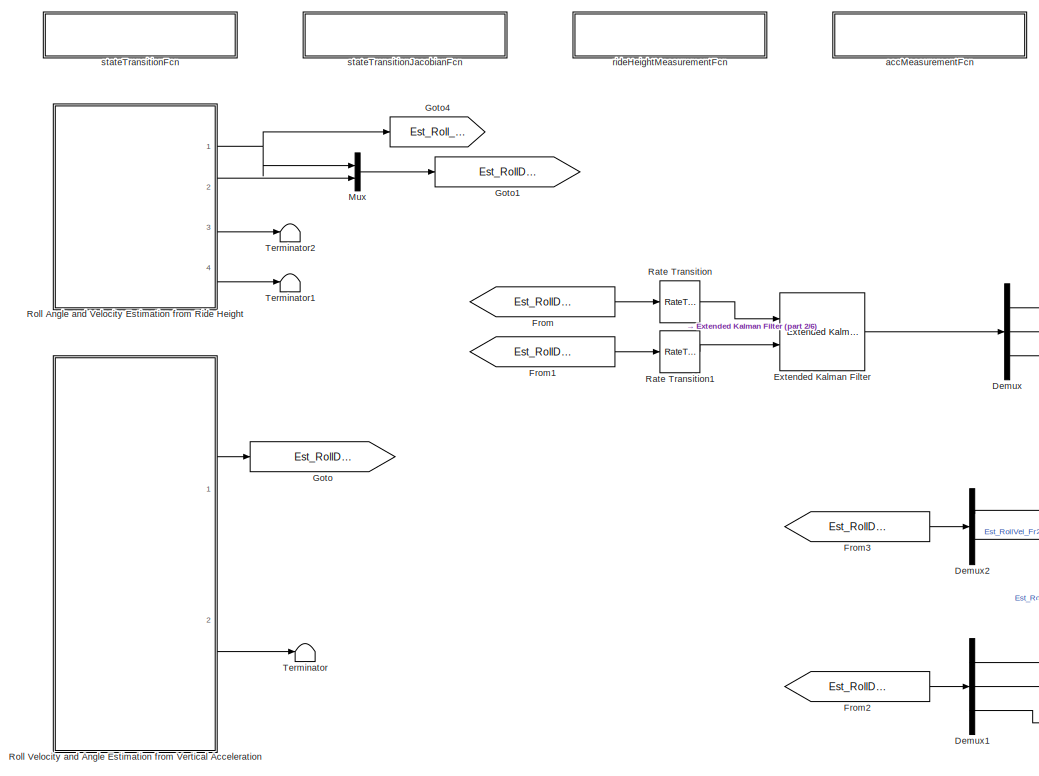
[diagram: root canvas - part 1/6, top left region]
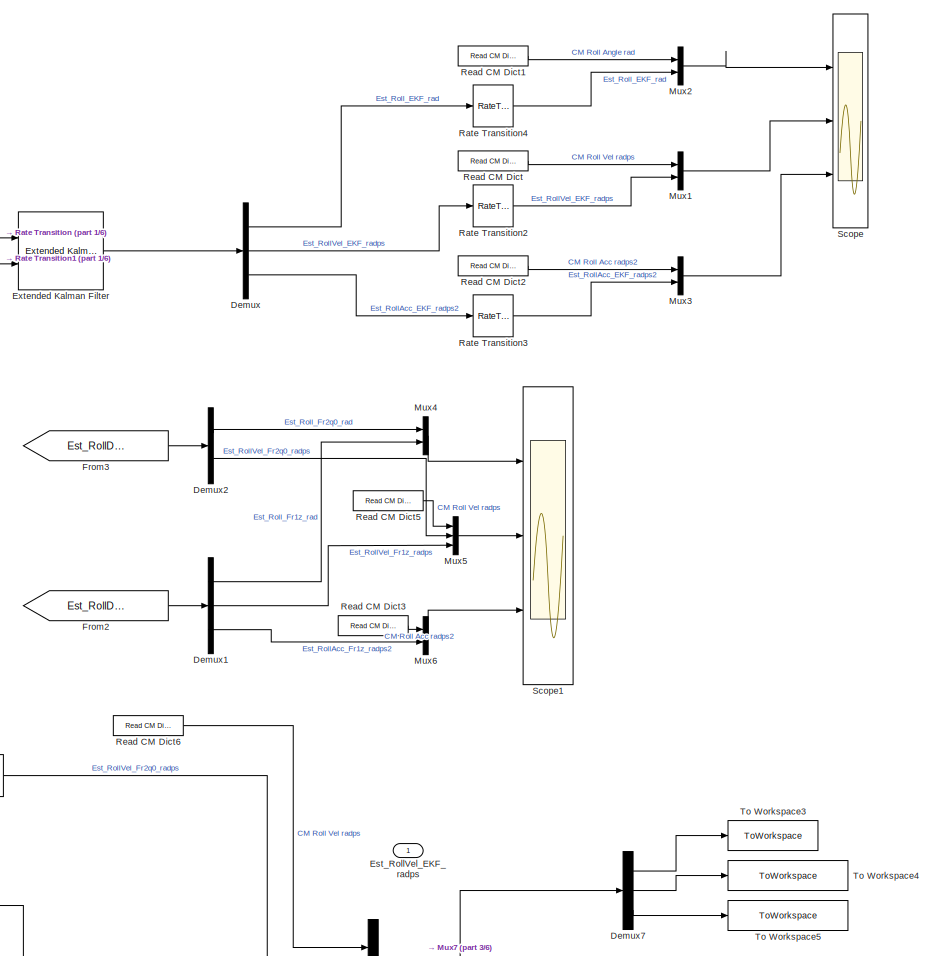
[diagram: root canvas - part 2/6, top center region]
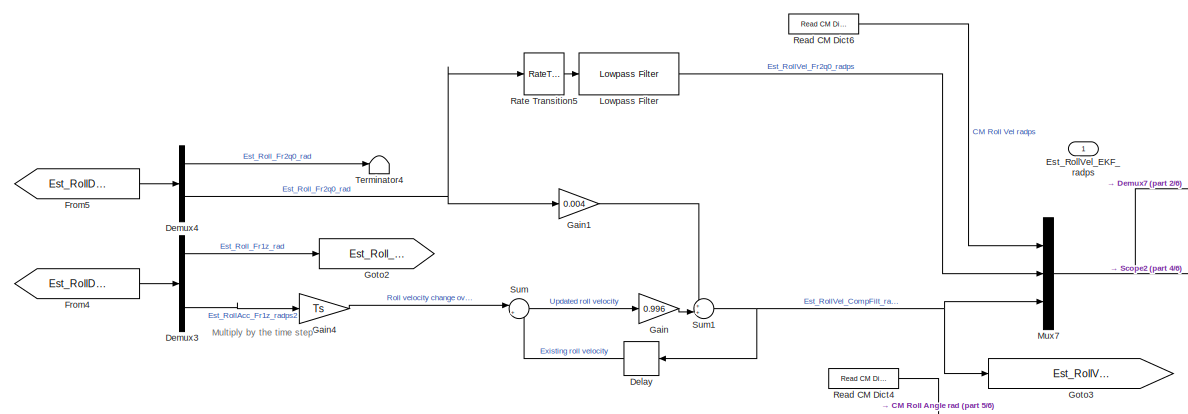
[diagram: root canvas - part 3/6, central region]
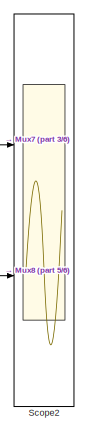
[diagram: root canvas - part 4/6, middle right region]
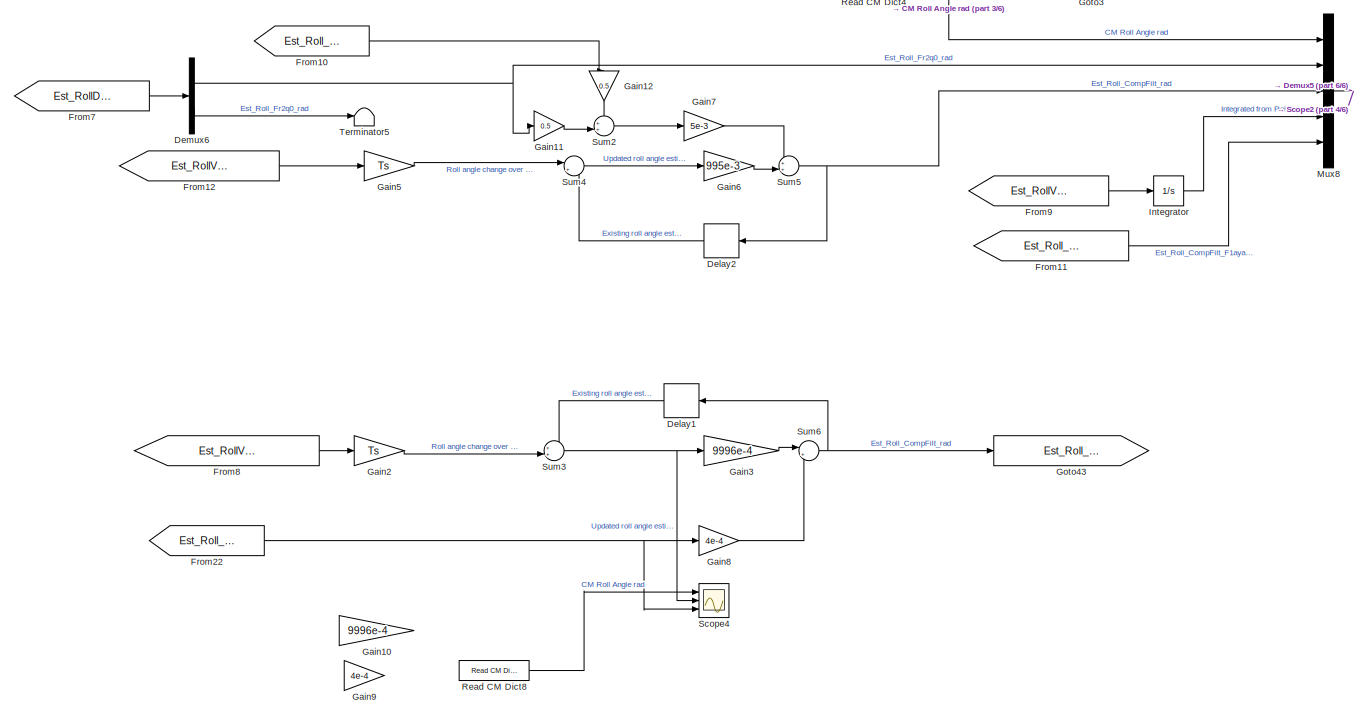
[diagram: root canvas - part 5/6, bottom center region]
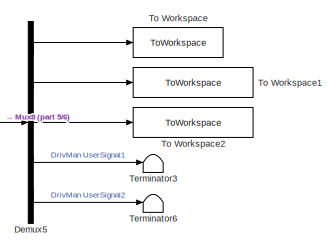
[diagram: root canvas - part 6/6, bottom right region]
MODEL slx_827eccd892d7
KIND model
CONFIG AbsTol = auto
CONFIG EnableMultiTasking = on
CONFIG FixedStep = auto
CONFIG MaxStep = auto
CONFIG MinStep = auto
CONFIG RelTol = 1e-3
CONFIG SampleTimeConstraint = Unconstrained
CONFIG SolverName = FixedStepAuto
CONFIG StartTime = 0.0
CONFIG StopTime = 10.0
BLOCK [Delay] Delay
  DelayLength = 1
  InputPortMap = u0
  NameLocation = top
  Ports = [1, 1]
BLOCK [Delay] Delay1
  DelayLength = 1
  InputPortMap = u0
  NameLocation = top
  Ports = [1, 1]
BLOCK [Delay] Delay2
  DelayLength = 1
  InputPortMap = u0
  NameLocation = top
  Ports = [1, 1]
BLOCK [Demux] Demux
  DisplayOption = none
  Outputs = 3
  Ports = [1, 3]
BLOCK [Demux] Demux1
  DisplayOption = none
  Outputs = 3
  Ports = [1, 3]
BLOCK [Demux] Demux2
  DisplayOption = none
  Outputs = 2
  Ports = [1, 2]
BLOCK [Demux] Demux3
  DisplayOption = none
  Outputs = 3
  Ports = [1, 3]
BLOCK [Demux] Demux4
  DisplayOption = none
  Outputs = 2
  Ports = [1, 2]
BLOCK [Demux] Demux5
  DisplayOption = none
  Outputs = 5
  Ports = [1, 5]
BLOCK [Demux] Demux6
  DisplayOption = none
  Outputs = 2
  Ports = [1, 2]
BLOCK [Demux] Demux7
  Outputs = 3
  Ports = [1, 3]
BLOCK [Outport] Est_RollVel_EKF_radps
BLOCK [Reference] Extended Kalman Filter  REF=sharedTrackingLibrary/Extended Kalman Filter
  Commented = on
  Ports = [2, 1]
  SourceBlock = sharedTrackingLibrary/Extended Kalman Filter
  SourceProductBaseCode = CT,DR,TF,ID,LP,NV,AR,RO,RR,UV,VE
  SourceType = Extended Kalman Filter
BLOCK [From] From
  Commented = on
  GotoTag = Est_RollDynamics_Fr2q0
BLOCK [From] From1
  Commented = on
  GotoTag = Est_RollDynamics_Fr1z
BLOCK [From] From10
  GotoTag = Est_Roll_Fr1ayaz_rad
BLOCK [From] From11
  GotoTag = Est_Roll_CompFilt_rad
BLOCK [From] From12
  GotoTag = Est_RollVel_CompFilt_radps
BLOCK [From] From2
  GotoTag = Est_RollDynamics_Fr1z
BLOCK [From] From22
  GotoTag = Est_Roll_Fr1ayaz_rad
BLOCK [From] From3
  GotoTag = Est_RollDynamics_Fr2q0
BLOCK [From] From4
  GotoTag = Est_RollDynamics_Fr1z
BLOCK [From] From5
  GotoTag = Est_RollDynamics_Fr2q0
BLOCK [From] From7
  GotoTag = Est_RollDynamics_Fr2q0
BLOCK [From] From8
  GotoTag = Est_RollVel_CompFilt_radps
BLOCK [From] From9
  GotoTag = Est_RollVel_CompFilt_radps
BLOCK [Gain] Gain
  Gain = 0.996
BLOCK [Gain] Gain1
  Gain = 0.004
BLOCK [Gain] Gain10
  Gain = 9996e-4
BLOCK [Gain] Gain11
  Gain = 0.5
BLOCK [Gain] Gain12
  Gain = 0.5
  NameLocation = left
BLOCK [Gain] Gain2
  Gain = Ts
BLOCK [Gain] Gain3
  Gain = 9996e-4
BLOCK [Gain] Gain4
  Gain = Ts
BLOCK [Gain] Gain5
  Gain = Ts
BLOCK [Gain] Gain6
  Gain = 995e-3
BLOCK [Gain] Gain7
  Gain = 5e-3
BLOCK [Gain] Gain8
  Gain = 4e-4
BLOCK [Gain] Gain9
  Gain = 4e-4
BLOCK [Goto] Goto
  GotoTag = Est_RollDynamics_Fr1z
BLOCK [Goto] Goto1
  GotoTag = Est_RollDynamics_Fr2q0
BLOCK [Goto] Goto2
  GotoTag = Est_Roll_Fr1ayaz_rad
BLOCK [Goto] Goto3
  GotoTag = Est_RollVel_CompFilt_radps
BLOCK [Goto] Goto4
  GotoTag = Est_Roll_Fr2q0_rad
BLOCK [Goto] Goto43
  GotoTag = Est_Roll_CompFilt_rad
BLOCK [Integrator] Integrator
  Ports = [1, 1]
BLOCK [Reference] Lowpass Filter  REF=dspfdesign/Lowpass Filter
  Ports = [1, 1]
  SourceBlock = dspfdesign/Lowpass Filter
  SourceProductBaseCode = DS
  SourceType = dsp.LowpassFilter
BLOCK [Mux] Mux
  DisplayOption = bar
  Inputs = 2
  Ports = [2, 1]
BLOCK [Mux] Mux1
  DisplayOption = bar
  Inputs = 2
  Ports = [2, 1]
BLOCK [Mux] Mux2
  DisplayOption = bar
  Inputs = 2
  Ports = [2, 1]
BLOCK [Mux] Mux3
  DisplayOption = bar
  Inputs = 2
  Ports = [2, 1]
BLOCK [Mux] Mux4
  DisplayOption = bar
  Inputs = 2
  Ports = [2, 1]
BLOCK [Mux] Mux5
  DisplayOption = bar
  Inputs = 3
  Ports = [3, 1]
BLOCK [Mux] Mux6
  DisplayOption = bar
  Inputs = 2
  Ports = [2, 1]
BLOCK [Mux] Mux7
  DisplayOption = bar
  Inputs = 3
  Ports = [3, 1]
BLOCK [Mux] Mux8
  DisplayOption = bar
  Inputs = 5
  Ports = [5, 1]
BLOCK [RateTransition] Rate Transition
  Commented = on
BLOCK [RateTransition] Rate Transition1
  Commented = on
BLOCK [RateTransition] Rate Transition2
BLOCK [RateTransition] Rate Transition3
BLOCK [RateTransition] Rate Transition4
BLOCK [RateTransition] Rate Transition5
BLOCK [Reference] Read CM Dict  REF=CarMaker4SL/Read CM Dict
  Ports = [0, 1]
  SourceBlock = CarMaker4SL/Read CM Dict
  SourceProductName = CarMaker4SL
  SourceType = Read CarMaker Dictionary Variable(s)
BLOCK [Reference] Read CM Dict1  REF=CarMaker4SL/Read CM Dict
  Ports = [0, 1]
  SourceBlock = CarMaker4SL/Read CM Dict
  SourceProductName = CarMaker4SL
  SourceType = Read CarMaker Dictionary Variable(s)
BLOCK [Reference] Read CM Dict2  REF=CarMaker4SL/Read CM Dict
  Ports = [0, 1]
  SourceBlock = CarMaker4SL/Read CM Dict
  SourceProductName = CarMaker4SL
  SourceType = Read CarMaker Dictionary Variable(s)
BLOCK [Reference] Read CM Dict3  REF=CarMaker4SL/Read CM Dict
  Ports = [0, 1]
  SourceBlock = CarMaker4SL/Read CM Dict
  SourceProductName = CarMaker4SL
  SourceType = Read CarMaker Dictionary Variable(s)
BLOCK [Reference] Read CM Dict4  REF=CarMaker4SL/Read CM Dict
  Ports = [0, 1]
  SourceBlock = CarMaker4SL/Read CM Dict
  SourceProductName = CarMaker4SL
  SourceType = Read CarMaker Dictionary Variable(s)
BLOCK [Reference] Read CM Dict5  REF=CarMaker4SL/Read CM Dict
  Ports = [0, 1]
  SourceBlock = CarMaker4SL/Read CM Dict
  SourceProductName = CarMaker4SL
  SourceType = Read CarMaker Dictionary Variable(s)
BLOCK [Reference] Read CM Dict6  REF=CarMaker4SL/Read CM Dict
  Ports = [0, 1]
  SourceBlock = CarMaker4SL/Read CM Dict
  SourceProductName = CarMaker4SL
  SourceType = Read CarMaker Dictionary Variable(s)
BLOCK [Reference] Read CM Dict8  REF=CarMaker4SL/Read CM Dict
  Ports = [0, 1]
  SourceBlock = CarMaker4SL/Read CM Dict
  SourceProductName = CarMaker4SL
  SourceType = Read CarMaker Dictionary Variable(s)
BLOCK [ModelReference] Roll Angle and Velocity Estimation from Ride Height
  ModelNameDialog = s0501_rollest_rideheight.slx
  ModelReferenceVersion = 1.15
  Ports = [0, 4]
BLOCK [ModelReference] Roll Velocity and Angle Estimation from Vertical Acceleration
  ModelNameDialog = s0502_rollest_vertacc.slx
  ModelReferenceVersion = 1.16
  Ports = [0, 2]
BLOCK [Scope] Scope
  Floating = off
  NumInputPorts = 3
  Ports = [3]
  ScopeSpecificationString = Simulink.scopes.TimeScopeBlockCfg('CurrentConfiguration', extmgr.ConfigurationSet(extmgr.Configuration('Core','General UI',true),extmgr.Configuration('Core','Source UI',true),extmgr.Configuration('Sources','WiredSimulink',true),extmgr.Configuration('Visuals','Time Domain',true,'SerializedDisplays',{struct('MinYLimReal','-142903566297649778511224766464.00000','MaxYLimReal','464012648879239507445442...<+3032ch>
BLOCK [Scope] Scope1
  Floating = off
  NumInputPorts = 3
  Ports = [3]
  ScopeSpecificationString = Simulink.scopes.TimeScopeBlockCfg('CurrentConfiguration', extmgr.ConfigurationSet(extmgr.Configuration('Core','General UI',true),extmgr.Configuration('Core','Source UI',true),extmgr.Configuration('Sources','WiredSimulink',true,'DataLoggingVariableName','ScopeData1'),extmgr.Configuration('Visuals','Time Domain',true,'SerializedDisplays',{struct('MinYLimReal','-0.11492','MaxYLimReal','0.41574','YLab...<+2868ch>
BLOCK [Scope] Scope2
  Floating = off
  NumInputPorts = 2
  Ports = [2]
  ScopeSpecificationString = Simulink.scopes.TimeScopeBlockCfg('CurrentConfiguration', extmgr.ConfigurationSet(extmgr.Configuration('Core','General UI',true),extmgr.Configuration('Core','Source UI',true),extmgr.Configuration('Sources','WiredSimulink',true,'DataLoggingVariableName','ScopeData2'),extmgr.Configuration('Visuals','Time Domain',true,'SerializedDisplays',{struct('MinYLimReal','-0.66443','MaxYLimReal','0.66936','YLab...<+2537ch>
BLOCK [Scope] Scope4
  Floating = off
  NumInputPorts = 3
  Ports = [3]
  ScopeSpecificationString = Simulink.scopes.TimeScopeBlockCfg('CurrentConfiguration', extmgr.ConfigurationSet(extmgr.Configuration('Core','General UI',true),extmgr.Configuration('Core','Source UI',true),extmgr.Configuration('Sources','WiredSimulink',true,'DataLoggingVariableName','ScopeData2'),extmgr.Configuration('Visuals','Time Domain',true,'SerializedDisplays',{struct('MinYLimReal','-0.00941','MaxYLimReal','0.08306','YLab...<+1506ch>
BLOCK [Sum] Sum
  Inputs = |++
  Ports = [2, 1]
BLOCK [Sum] Sum1
  Inputs = ++|
  Ports = [2, 1]
BLOCK [Sum] Sum2
  Inputs = ++|
  Ports = [2, 1]
BLOCK [Sum] Sum3
  Inputs = ++|
  Ports = [2, 1]
BLOCK [Sum] Sum4
  Inputs = |++
  Ports = [2, 1]
BLOCK [Sum] Sum5
  Inputs = ++|
  Ports = [2, 1]
BLOCK [Sum] Sum6
  Inputs = |++
  Ports = [2, 1]
BLOCK [Terminator] Terminator
BLOCK [Terminator] Terminator1
BLOCK [Terminator] Terminator2
BLOCK [Terminator] Terminator3
BLOCK [Terminator] Terminator4
BLOCK [Terminator] Terminator5
BLOCK [Terminator] Terminator6
BLOCK [ToWorkspace] To Workspace
  FixptAsFi = on
  MaxDataPoints = inf
  Ports = [1]
  SampleTime = -1
  VariableName = Car_Roll_rad
BLOCK [ToWorkspace] To Workspace1
  FixptAsFi = on
  MaxDataPoints = inf
  Ports = [1]
  SampleTime = -1
  VariableName = Est_Roll_Fr2q0_rad
BLOCK [ToWorkspace] To Workspace2
  FixptAsFi = on
  MaxDataPoints = inf
  Ports = [1]
  SampleTime = -1
  VariableName = Est_Roll_CompFilt_rad
BLOCK [ToWorkspace] To Workspace3
  FixptAsFi = on
  MaxDataPoints = inf
  Ports = [1]
  SampleTime = -1
  VariableName = Car_RollVel_radps
BLOCK [ToWorkspace] To Workspace4
  FixptAsFi = on
  MaxDataPoints = inf
  Ports = [1]
  SampleTime = -1
  VariableName = Est_RollVel_Fr2q0_radps
BLOCK [ToWorkspace] To Workspace5
  FixptAsFi = on
  MaxDataPoints = inf
  Ports = [1]
  SampleTime = -1
  VariableName = Est_RollVel_CompFilt_radps
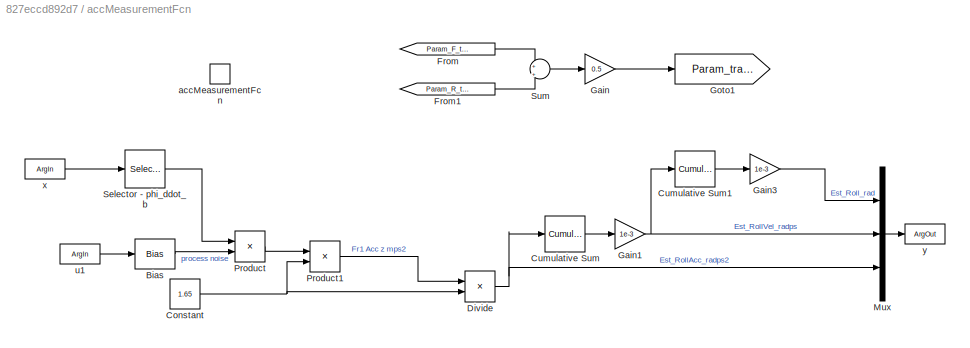
BLOCK [SubSystem] accMeasurementFcn
  Ports = [0, 0, 0, 1]
  RequestExecContextInheritance = off
  TreatAsAtomicUnit = on
BLOCK [Bias] accMeasurementFcn/Bias
  Bias = 1
  SaturateOnIntegerOverflow = off
BLOCK [Constant] accMeasurementFcn/Constant
  Value = 1.65
BLOCK [Reference] accMeasurementFcn/Cumulative Sum  REF=dspmathops/Cumulative
Sum
  Ports = [1, 1]
  SourceBlock = dspmathops/Cumulative\nSum
  SourceProductBaseCode = DS
  SourceType = Cumulative Sum
  UserDataPersistent = on
BLOCK [Reference] accMeasurementFcn/Cumulative Sum1  REF=dspmathops/Cumulative
Sum
  Ports = [1, 1]
  SourceBlock = dspmathops/Cumulative\nSum
  SourceProductBaseCode = DS
  SourceType = Cumulative Sum
  UserDataPersistent = on
BLOCK [Product] accMeasurementFcn/Divide
  Inputs = */
  Ports = [2, 1]
BLOCK [From] accMeasurementFcn/From
  Commented = on
  GotoTag = Param_F_track
BLOCK [From] accMeasurementFcn/From1
  Commented = on
  GotoTag = Param_R_track
BLOCK [Gain] accMeasurementFcn/Gain
  Commented = on
  Gain = 0.5
BLOCK [Gain] accMeasurementFcn/Gain1
  Gain = 1e-3
BLOCK [Gain] accMeasurementFcn/Gain3
  Gain = 1e-3
BLOCK [Goto] accMeasurementFcn/Goto1
  Commented = on
  GotoTag = Param_track
BLOCK [Mux] accMeasurementFcn/Mux
  DisplayOption = bar
  Inputs = 3
  Ports = [3, 1]
BLOCK [Product] accMeasurementFcn/Product
  Ports = [2, 1]
BLOCK [Product] accMeasurementFcn/Product1
  Ports = [2, 1]
BLOCK [Selector] accMeasurementFcn/Selector - phi_ddot_b
  IndexOptions = Index vector (dialog)
  Indices = [3]
  InputPortWidth = 3
  OutputSizes = 1
  Ports = [1, 1]
BLOCK [Sum] accMeasurementFcn/Sum
  Commented = on
  Inputs = +|+
  Ports = [2, 1]
BLOCK [TriggerPort] accMeasurementFcn/accMeasurementFcn
  FunctionName = accMeasurementFcn
  FunctionVisibility = scoped
  IsSimulinkFunction = on
  Ports = []
  StatesWhenEnabling = held
  TriggerType = function-call
  VariantControl = (inherit)
BLOCK [ArgIn] accMeasurementFcn/u1
  ArgumentName = v
  DisableCoverage = on
  Port = 2
BLOCK [ArgIn] accMeasurementFcn/x
  ArgumentName = x
  DisableCoverage = on
  PortDimensions = 3
BLOCK [ArgOut] accMeasurementFcn/y
  ArgumentName = y
  DisableCoverage = on
  PortDimensions = 3
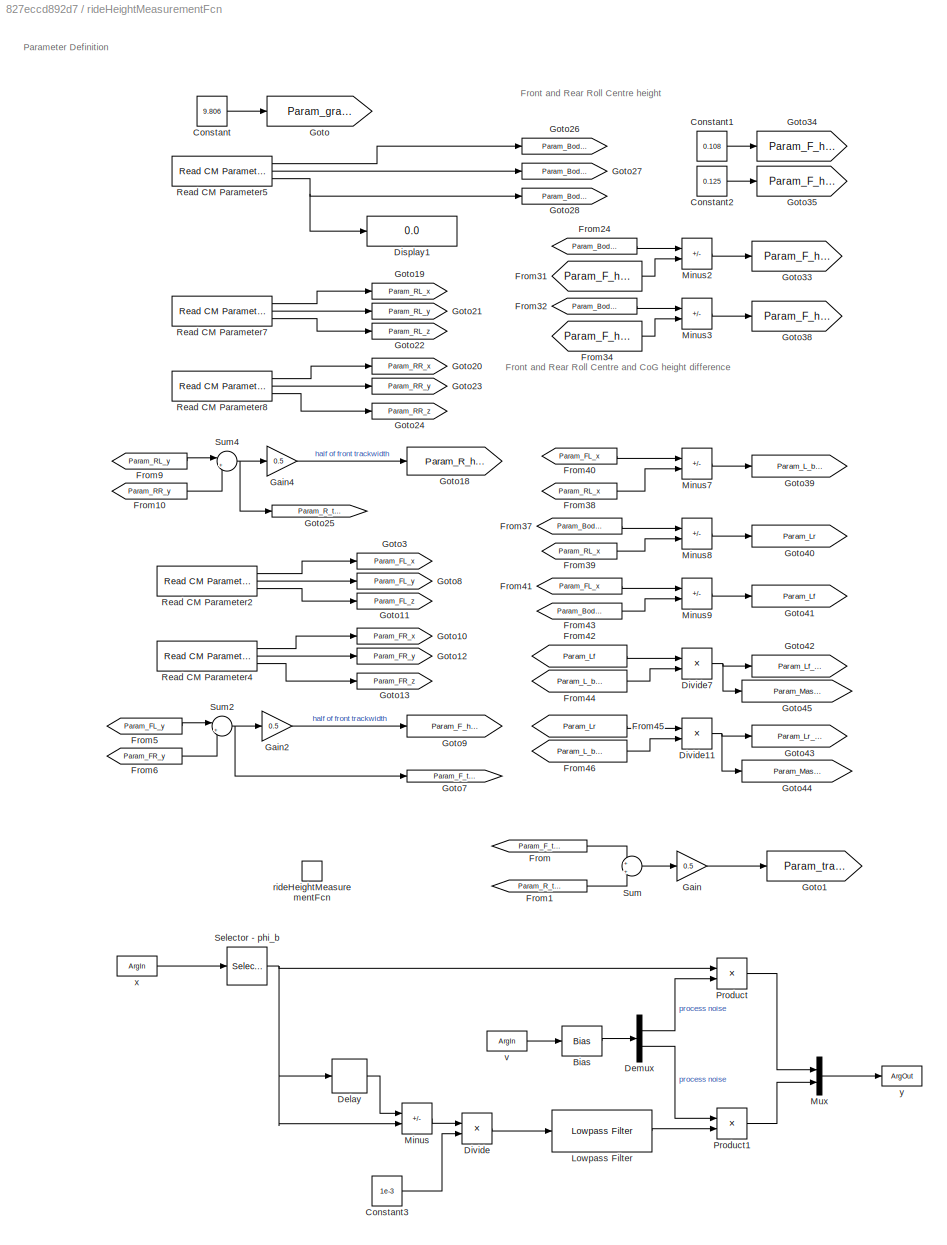
BLOCK [SubSystem] rideHeightMeasurementFcn
  Ports = [0, 0, 0, 1]
  RequestExecContextInheritance = off
  TreatAsAtomicUnit = on
BLOCK [Bias] rideHeightMeasurementFcn/Bias
  Bias = 1
  SaturateOnIntegerOverflow = off
BLOCK [Constant] rideHeightMeasurementFcn/Constant
  Commented = on
  Value = 9.806
BLOCK [Constant] rideHeightMeasurementFcn/Constant1
  Commented = on
  Value = 0.108
BLOCK [Constant] rideHeightMeasurementFcn/Constant2
  Commented = on
  Value = 0.125
BLOCK [Constant] rideHeightMeasurementFcn/Constant3
  Value = 1e-3
BLOCK [Delay] rideHeightMeasurementFcn/Delay
  DelayLength = 1
  InputPortMap = u0
  Ports = [1, 1]
BLOCK [Demux] rideHeightMeasurementFcn/Demux
  DisplayOption = none
  Outputs = 2
  Ports = [1, 2]
BLOCK [Display] rideHeightMeasurementFcn/Display1
  Commented = on
  Decimation = 1
  Ports = [1]
BLOCK [Product] rideHeightMeasurementFcn/Divide
  Inputs = */
  Ports = [2, 1]
BLOCK [Product] rideHeightMeasurementFcn/Divide11
  Commented = on
  Inputs = */
  Ports = [2, 1]
BLOCK [Product] rideHeightMeasurementFcn/Divide7
  Commented = on
  Inputs = */
  Ports = [2, 1]
BLOCK [From] rideHeightMeasurementFcn/From
  Commented = on
  GotoTag = Param_F_track
BLOCK [From] rideHeightMeasurementFcn/From1
  Commented = on
  GotoTag = Param_R_track
BLOCK [From] rideHeightMeasurementFcn/From10
  Commented = on
  GotoTag = Param_RR_y
BLOCK [From] rideHeightMeasurementFcn/From24
  Commented = on
  GotoTag = Param_Body_z
BLOCK [From] rideHeightMeasurementFcn/From31
  Commented = on
  GotoTag = Param_F_hrf
BLOCK [From] rideHeightMeasurementFcn/From32
  Commented = on
  GotoTag = Param_Body_z
BLOCK [From] rideHeightMeasurementFcn/From34
  Commented = on
  GotoTag = Param_F_hrr
BLOCK [From] rideHeightMeasurementFcn/From37
  Commented = on
  GotoTag = Param_Body_x
BLOCK [From] rideHeightMeasurementFcn/From38
  Commented = on
  GotoTag = Param_RL_x
BLOCK [From] rideHeightMeasurementFcn/From39
  Commented = on
  GotoTag = Param_RL_x
BLOCK [From] rideHeightMeasurementFcn/From40
  Commented = on
  GotoTag = Param_FL_x
BLOCK [From] rideHeightMeasurementFcn/From41
  Commented = on
  GotoTag = Param_FL_x
BLOCK [From] rideHeightMeasurementFcn/From42
  Commented = on
  GotoTag = Param_Lf
BLOCK [From] rideHeightMeasurementFcn/From43
  Commented = on
  GotoTag = Param_Body_x
BLOCK [From] rideHeightMeasurementFcn/From44
  Commented = on
  GotoTag = Param_L_base
BLOCK [From] rideHeightMeasurementFcn/From45
  Commented = on
  GotoTag = Param_Lr
BLOCK [From] rideHeightMeasurementFcn/From46
  Commented = on
  GotoTag = Param_L_base
BLOCK [From] rideHeightMeasurementFcn/From5
  Commented = on
  GotoTag = Param_FL_y
BLOCK [From] rideHeightMeasurementFcn/From6
  Commented = on
  GotoTag = Param_FR_y
BLOCK [From] rideHeightMeasurementFcn/From9
  Commented = on
  GotoTag = Param_RL_y
BLOCK [Gain] rideHeightMeasurementFcn/Gain
  Commented = on
  Gain = 0.5
BLOCK [Gain] rideHeightMeasurementFcn/Gain2
  Commented = on
  Gain = 0.5
BLOCK [Gain] rideHeightMeasurementFcn/Gain4
  Commented = on
  Gain = 0.5
BLOCK [Goto] rideHeightMeasurementFcn/Goto
  Commented = on
  GotoTag = Param_gravity_mps2
BLOCK [Goto] rideHeightMeasurementFcn/Goto1
  Commented = on
  GotoTag = Param_track
BLOCK [Goto] rideHeightMeasurementFcn/Goto10
  Commented = on
  GotoTag = Param_FR_x
BLOCK [Goto] rideHeightMeasurementFcn/Goto11
  Commented = on
  GotoTag = Param_FL_z
BLOCK [Goto] rideHeightMeasurementFcn/Goto12
  Commented = on
  GotoTag = Param_FR_y
BLOCK [Goto] rideHeightMeasurementFcn/Goto13
  Commented = on
  GotoTag = Param_FR_z
BLOCK [Goto] rideHeightMeasurementFcn/Goto18
  Commented = on
  GotoTag = Param_R_halftrack
BLOCK [Goto] rideHeightMeasurementFcn/Goto19
  Commented = on
  GotoTag = Param_RL_x
BLOCK [Goto] rideHeightMeasurementFcn/Goto20
  Commented = on
  GotoTag = Param_RR_x
BLOCK [Goto] rideHeightMeasurementFcn/Goto21
  Commented = on
  GotoTag = Param_RL_y
BLOCK [Goto] rideHeightMeasurementFcn/Goto22
  Commented = on
  GotoTag = Param_RL_z
BLOCK [Goto] rideHeightMeasurementFcn/Goto23
  Commented = on
  GotoTag = Param_RR_y
BLOCK [Goto] rideHeightMeasurementFcn/Goto24
  Commented = on
  GotoTag = Param_RR_z
BLOCK [Goto] rideHeightMeasurementFcn/Goto25
  Commented = on
  GotoTag = Param_R_track
BLOCK [Goto] rideHeightMeasurementFcn/Goto26
  Commented = on
  GotoTag = Param_Body_x
BLOCK [Goto] rideHeightMeasurementFcn/Goto27
  Commented = on
  GotoTag = Param_Body_y
BLOCK [Goto] rideHeightMeasurementFcn/Goto28
  Commented = on
  GotoTag = Param_Body_z
BLOCK [Goto] rideHeightMeasurementFcn/Goto3
  Commented = on
  GotoTag = Param_FL_x
BLOCK [Goto] rideHeightMeasurementFcn/Goto33
  Commented = on
  GotoTag = Param_F_hsf
BLOCK [Goto] rideHeightMeasurementFcn/Goto34
  Commented = on
  GotoTag = Param_F_hrf
BLOCK [Goto] rideHeightMeasurementFcn/Goto35
  Commented = on
  GotoTag = Param_F_hrr
BLOCK [Goto] rideHeightMeasurementFcn/Goto38
  Commented = on
  GotoTag = Param_F_hsr
BLOCK [Goto] rideHeightMeasurementFcn/Goto39
  Commented = on
  GotoTag = Param_L_base
BLOCK [Goto] rideHeightMeasurementFcn/Goto40
  Commented = on
  GotoTag = Param_Lr
BLOCK [Goto] rideHeightMeasurementFcn/Goto41
  Commented = on
  GotoTag = Param_Lf
BLOCK [Goto] rideHeightMeasurementFcn/Goto42
  Commented = on
  GotoTag = Param_Lf_perc
BLOCK [Goto] rideHeightMeasurementFcn/Goto43
  Commented = on
  GotoTag = Param_Lr_perc
BLOCK [Goto] rideHeightMeasurementFcn/Goto44
  Commented = on
  GotoTag = Param_Mass_f_perc
BLOCK [Goto] rideHeightMeasurementFcn/Goto45
  Commented = on
  GotoTag = Param_Mass_r_perc
BLOCK [Goto] rideHeightMeasurementFcn/Goto7
  Commented = on
  GotoTag = Param_F_track
BLOCK [Goto] rideHeightMeasurementFcn/Goto8
  Commented = on
  GotoTag = Param_FL_y
BLOCK [Goto] rideHeightMeasurementFcn/Goto9
  Commented = on
  GotoTag = Param_F_halftrack
BLOCK [Reference] rideHeightMeasurementFcn/Lowpass Filter  REF=dspfdesign/Lowpass Filter
  Ports = [1, 1]
  SourceBlock = dspfdesign/Lowpass Filter
  SourceProductBaseCode = DS
  SourceType = dsp.LowpassFilter
BLOCK [Sum] rideHeightMeasurementFcn/Minus
  IconShape = rectangular
  Inputs = +-
  Ports = [2, 1]
BLOCK [Sum] rideHeightMeasurementFcn/Minus2
  Commented = on
  IconShape = rectangular
  Inputs = +-
  Ports = [2, 1]
BLOCK [Sum] rideHeightMeasurementFcn/Minus3
  Commented = on
  IconShape = rectangular
  Inputs = +-
  Ports = [2, 1]
BLOCK [Sum] rideHeightMeasurementFcn/Minus7
  Commented = on
  IconShape = rectangular
  Inputs = +-
  Ports = [2, 1]
BLOCK [Sum] rideHeightMeasurementFcn/Minus8
  Commented = on
  IconShape = rectangular
  Inputs = +-
  Ports = [2, 1]
BLOCK [Sum] rideHeightMeasurementFcn/Minus9
  Commented = on
  IconShape = rectangular
  Inputs = +-
  Ports = [2, 1]
BLOCK [Mux] rideHeightMeasurementFcn/Mux
  DisplayOption = bar
  Inputs = 2
  Ports = [2, 1]
BLOCK [Product] rideHeightMeasurementFcn/Product
  Ports = [2, 1]
BLOCK [Product] rideHeightMeasurementFcn/Product1
  Ports = [2, 1]
BLOCK [Reference] rideHeightMeasurementFcn/Read CM Parameter2  REF=CarMaker4SL/Read CM Parameter
  Commented = on
  Ports = [0, 3]
  SourceBlock = CarMaker4SL/Read CM Parameter
  SourceProductName = CarMaker4SL
  SourceType = Read CarMaker Infofile Parameter
BLOCK [Reference] rideHeightMeasurementFcn/Read CM Parameter4  REF=CarMaker4SL/Read CM Parameter
  Commented = on
  Ports = [0, 3]
  SourceBlock = CarMaker4SL/Read CM Parameter
  SourceProductName = CarMaker4SL
  SourceType = Read CarMaker Infofile Parameter
BLOCK [Reference] rideHeightMeasurementFcn/Read CM Parameter5  REF=CarMaker4SL/Read CM Parameter
  Commented = on
  Ports = [0, 3]
  SourceBlock = CarMaker4SL/Read CM Parameter
  SourceProductName = CarMaker4SL
  SourceType = Read CarMaker Infofile Parameter
BLOCK [Reference] rideHeightMeasurementFcn/Read CM Parameter7  REF=CarMaker4SL/Read CM Parameter
  Commented = on
  Ports = [0, 3]
  SourceBlock = CarMaker4SL/Read CM Parameter
  SourceProductName = CarMaker4SL
  SourceType = Read CarMaker Infofile Parameter
BLOCK [Reference] rideHeightMeasurementFcn/Read CM Parameter8  REF=CarMaker4SL/Read CM Parameter
  Commented = on
  Ports = [0, 3]
  SourceBlock = CarMaker4SL/Read CM Parameter
  SourceProductName = CarMaker4SL
  SourceType = Read CarMaker Infofile Parameter
BLOCK [Selector] rideHeightMeasurementFcn/Selector - phi_b
  IndexOptions = Index vector (dialog)
  Indices = [1]
  InputPortWidth = 3
  OutputSizes = 1
  Ports = [1, 1]
BLOCK [Sum] rideHeightMeasurementFcn/Sum
  Commented = on
  Inputs = +|+
  Ports = [2, 1]
BLOCK [Sum] rideHeightMeasurementFcn/Sum2
  Commented = on
  Inputs = |+-
  Ports = [2, 1]
BLOCK [Sum] rideHeightMeasurementFcn/Sum4
  Commented = on
  Inputs = |+-
  Ports = [2, 1]
BLOCK [TriggerPort] rideHeightMeasurementFcn/rideHeightMeasurementFcn
  FunctionName = rideHeightMeasurementFcn
  FunctionVisibility = scoped
  IsSimulinkFunction = on
  Ports = []
  StatesWhenEnabling = held
  TriggerType = function-call
  VariantControl = (inherit)
BLOCK [ArgIn] rideHeightMeasurementFcn/v
  ArgumentName = v
  DisableCoverage = on
  Port = 2
  PortDimensions = 2
BLOCK [ArgIn] rideHeightMeasurementFcn/x
  ArgumentName = x
  DisableCoverage = on
  PortDimensions = 3
BLOCK [ArgOut] rideHeightMeasurementFcn/y
  ArgumentName = y
  DisableCoverage = on
  PortDimensions = 2
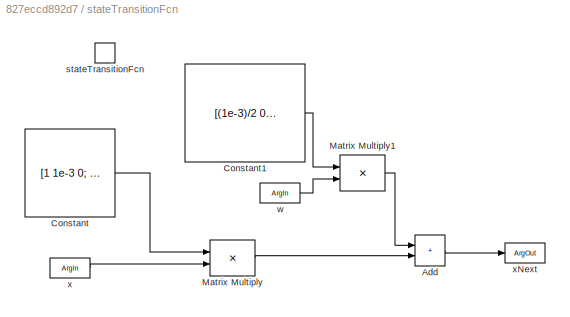
BLOCK [SubSystem] stateTransitionFcn
  Ports = [0, 0, 0, 1]
  RequestExecContextInheritance = off
  TreatAsAtomicUnit = on
BLOCK [Sum] stateTransitionFcn/Add
  IconShape = rectangular
  Ports = [2, 1]
BLOCK [Constant] stateTransitionFcn/Constant
  Value = [1 1e-3 0; 0 1 1e-3; 0 0 1]
BLOCK [Constant] stateTransitionFcn/Constant1
  Value = [(1e-3)/2 0 ;1 (1e-3)/2 ;0 1]
  VectorParams1D = off
BLOCK [Product] stateTransitionFcn/Matrix Multiply
  Multiplication = Matrix(*)
  Ports = [2, 1]
BLOCK [Product] stateTransitionFcn/Matrix Multiply1
  Multiplication = Matrix(*)
  Ports = [2, 1]
BLOCK [TriggerPort] stateTransitionFcn/stateTransitionFcn
  FunctionName = stateTransitionFcn
  FunctionVisibility = scoped
  IsSimulinkFunction = on
  Ports = []
  StatesWhenEnabling = held
  TriggerType = function-call
  VariantControl = (inherit)
BLOCK [ArgIn] stateTransitionFcn/w
  ArgumentName = w
  DisableCoverage = on
  Port = 2
  PortDimensions = 2
BLOCK [ArgIn] stateTransitionFcn/x
  ArgumentName = x
  DisableCoverage = on
  PortDimensions = 3
BLOCK [ArgOut] stateTransitionFcn/xNext
  ArgumentName = xNext
  DisableCoverage = on
  PortDimensions = 3
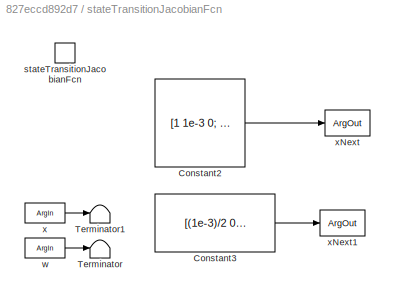
BLOCK [SubSystem] stateTransitionJacobianFcn
  Ports = [0, 0, 0, 1]
  RequestExecContextInheritance = off
  TreatAsAtomicUnit = on
BLOCK [Constant] stateTransitionJacobianFcn/Constant2
  Value = [1 1e-3 0; 0 1 1e-3; 0 0 1]
BLOCK [Constant] stateTransitionJacobianFcn/Constant3
  Value = [(1e-3)/2 0  ;1 (1e-3)/2 ;0 1]
BLOCK [Terminator] stateTransitionJacobianFcn/Terminator
BLOCK [Terminator] stateTransitionJacobianFcn/Terminator1
BLOCK [TriggerPort] stateTransitionJacobianFcn/stateTransitionJacobianFcn
  FunctionName = stateTransitionJacobianFcn
  FunctionVisibility = scoped
  IsSimulinkFunction = on
  Ports = []
  StatesWhenEnabling = held
  TriggerType = function-call
  VariantControl = (inherit)
BLOCK [ArgIn] stateTransitionJacobianFcn/w
  ArgumentName = w
  DisableCoverage = on
  Port = 2
  PortDimensions = 3
BLOCK [ArgIn] stateTransitionJacobianFcn/x
  ArgumentName = x
  DisableCoverage = on
  PortDimensions = 3
BLOCK [ArgOut] stateTransitionJacobianFcn/xNext
  ArgumentName = A
  DisableCoverage = on
  PortDimensions = [3 3]
BLOCK [ArgOut] stateTransitionJacobianFcn/xNext1
  ArgumentName = G
  DisableCoverage = on
  Port = 2
  PortDimensions = [3 2]
ANNOTATION (root): Multiply by the time step
ANNOTATION rideHeightMeasurementFcn: Front and Rear Roll Centre and CoG height difference
ANNOTATION rideHeightMeasurementFcn: Front and Rear Roll Centre height
ANNOTATION rideHeightMeasurementFcn: Parameter Definition
LINE Delay1:1 -> Sum3:1
LINE Delay2:1 -> Sum4:2
LINE Delay:1 -> Sum:2
LINE Demux1:1 -> Mux4:2
LINE Demux1:2 -> Mux5:3
LINE Demux1:3 -> Mux6:2
LINE Demux2:1 -> Mux4:1
LINE Demux2:2 -> Mux5:2
LINE Demux3:1 -> Goto2:1
LINE Demux3:3 -> Gain4:1
LINE Demux4:1 -> Terminator4:1
NET Demux4:2 -> Gain1:1, Rate Transition5:1
LINE Demux5:1 -> To Workspace:1
LINE Demux5:2 -> To Workspace1:1
LINE Demux5:3 -> To Workspace2:1
LINE Demux5:4 -> Terminator3:1
LINE Demux5:5 -> Terminator6:1
NET Demux6:1 -> Gain11:1, Mux8:2
LINE Demux6:2 -> Terminator5:1
LINE Demux7:1 -> To Workspace3:1
LINE Demux7:2 -> To Workspace4:1
LINE Demux7:3 -> To Workspace5:1
LINE Demux:1 -> Rate Transition4:1
LINE Demux:2 -> Rate Transition2:1
LINE Demux:3 -> Rate Transition3:1
LINE Extended Kalman Filter:1 -> Demux:1
LINE From10:1 -> Gain12:1
LINE From11:1 -> Mux8:5
LINE From12:1 -> Gain5:1
LINE From1:1 -> Rate Transition1:1
NET From22:1 -> Gain8:1, Scope4:3
LINE From2:1 -> Demux1:1
LINE From3:1 -> Demux2:1
LINE From4:1 -> Demux3:1
LINE From5:1 -> Demux4:1
LINE From7:1 -> Demux6:1
LINE From8:1 -> Gain2:1
LINE From9:1 -> Integrator:1
LINE From:1 -> Rate Transition:1
LINE Gain11:1 -> Sum2:2
LINE Gain12:1 -> Sum2:1
LINE Gain1:1 -> Sum1:1
LINE Gain2:1 -> Sum3:2
LINE Gain3:1 -> Sum6:1
LINE Gain4:1 -> Sum:1
LINE Gain5:1 -> Sum4:1
LINE Gain6:1 -> Sum5:2
LINE Gain7:1 -> Sum5:1
LINE Gain8:1 -> Sum6:2
LINE Gain:1 -> Sum1:2
LINE Integrator:1 -> Mux8:4
LINE Lowpass Filter:1 -> Mux7:2
LINE Mux1:1 -> Scope:2
LINE Mux2:1 -> Scope:1
LINE Mux3:1 -> Scope:3
LINE Mux4:1 -> Scope1:1
LINE Mux5:1 -> Scope1:2
LINE Mux6:1 -> Scope1:3
NET Mux7:1 -> Demux7:1, Scope2:1
NET Mux8:1 -> Demux5:1, Scope2:2
LINE Mux:1 -> Goto1:1
LINE Rate Transition1:1 -> Extended Kalman Filter:2
LINE Rate Transition2:1 -> Mux1:2
LINE Rate Transition3:1 -> Mux3:2
LINE Rate Transition4:1 -> Mux2:2
LINE Rate Transition5:1 -> Lowpass Filter:1
LINE Rate Transition:1 -> Extended Kalman Filter:1
LINE Read CM Dict1:1 -> Mux2:1
LINE Read CM Dict2:1 -> Mux3:1
LINE Read CM Dict3:1 -> Mux6:1
LINE Read CM Dict4:1 -> Mux8:1
LINE Read CM Dict5:1 -> Mux5:1
LINE Read CM Dict6:1 -> Mux7:1
LINE Read CM Dict8:1 -> Scope4:1
LINE Read CM Dict:1 -> Mux1:1
NET Roll Angle and Velocity Estimation from Ride Height:1 -> Goto4:1, Mux:1
LINE Roll Angle and Velocity Estimation from Ride Height:2 -> Mux:2
LINE Roll Angle and Velocity Estimation from Ride Height:3 -> Terminator2:1
LINE Roll Angle and Velocity Estimation from Ride Height:4 -> Terminator1:1
LINE Roll Velocity and Angle Estimation from Vertical Acceleration:1 -> Goto:1
LINE Roll Velocity and Angle Estimation from Vertical Acceleration:2 -> Terminator:1
NET Sum1:1 -> Delay:1, Goto3:1, Mux7:3
LINE Sum2:1 -> Gain7:1
NET Sum3:1 -> Gain3:1, Scope4:2
LINE Sum4:1 -> Gain6:1
NET Sum5:1 -> Delay2:1, Mux8:3
NET Sum6:1 -> Delay1:1, Goto43:1
LINE Sum:1 -> Gain:1
LINE accMeasurementFcn/Bias:1 -> accMeasurementFcn/Product:2
NET accMeasurementFcn/Constant:1 -> accMeasurementFcn/Divide:2, accMeasurementFcn/Product1:2
LINE accMeasurementFcn/Cumulative Sum1:1 -> accMeasurementFcn/Gain3:1
LINE accMeasurementFcn/Cumulative Sum:1 -> accMeasurementFcn/Gain1:1
NET accMeasurementFcn/Divide:1 -> accMeasurementFcn/Cumulative Sum:1, accMeasurementFcn/Mux:3
LINE accMeasurementFcn/From1:1 -> accMeasurementFcn/Sum:2
LINE accMeasurementFcn/From:1 -> accMeasurementFcn/Sum:1
NET accMeasurementFcn/Gain1:1 -> accMeasurementFcn/Cumulative Sum1:1, accMeasurementFcn/Mux:2
LINE accMeasurementFcn/Gain3:1 -> accMeasurementFcn/Mux:1
LINE accMeasurementFcn/Gain:1 -> accMeasurementFcn/Goto1:1
LINE accMeasurementFcn/Mux:1 -> accMeasurementFcn/y:1
LINE accMeasurementFcn/Product1:1 -> accMeasurementFcn/Divide:1
LINE accMeasurementFcn/Product:1 -> accMeasurementFcn/Product1:1
LINE accMeasurementFcn/Selector - phi_ddot_b:1 -> accMeasurementFcn/Product:1
LINE accMeasurementFcn/Sum:1 -> accMeasurementFcn/Gain:1
LINE accMeasurementFcn/u1:1 -> accMeasurementFcn/Bias:1
LINE accMeasurementFcn/x:1 -> accMeasurementFcn/Selector - phi_ddot_b:1
LINE rideHeightMeasurementFcn/Bias:1 -> rideHeightMeasurementFcn/Demux:1
LINE rideHeightMeasurementFcn/Constant1:1 -> rideHeightMeasurementFcn/Goto34:1
LINE rideHeightMeasurementFcn/Constant2:1 -> rideHeightMeasurementFcn/Goto35:1
LINE rideHeightMeasurementFcn/Constant3:1 -> rideHeightMeasurementFcn/Divide:2
LINE rideHeightMeasurementFcn/Constant:1 -> rideHeightMeasurementFcn/Goto:1
LINE rideHeightMeasurementFcn/Delay:1 -> rideHeightMeasurementFcn/Minus:1
LINE rideHeightMeasurementFcn/Demux:1 -> rideHeightMeasurementFcn/Product:2
LINE rideHeightMeasurementFcn/Demux:2 -> rideHeightMeasurementFcn/Product1:1
NET rideHeightMeasurementFcn/Divide11:1 -> rideHeightMeasurementFcn/Goto43:1, rideHeightMeasurementFcn/Goto44:1
NET rideHeightMeasurementFcn/Divide7:1 -> rideHeightMeasurementFcn/Goto42:1, rideHeightMeasurementFcn/Goto45:1
LINE rideHeightMeasurementFcn/Divide:1 -> rideHeightMeasurementFcn/Lowpass Filter:1
LINE rideHeightMeasurementFcn/From10:1 -> rideHeightMeasurementFcn/Sum4:2
LINE rideHeightMeasurementFcn/From1:1 -> rideHeightMeasurementFcn/Sum:2
LINE rideHeightMeasurementFcn/From24:1 -> rideHeightMeasurementFcn/Minus2:1
LINE rideHeightMeasurementFcn/From31:1 -> rideHeightMeasurementFcn/Minus2:2
LINE rideHeightMeasurementFcn/From32:1 -> rideHeightMeasurementFcn/Minus3:1
LINE rideHeightMeasurementFcn/From34:1 -> rideHeightMeasurementFcn/Minus3:2
LINE rideHeightMeasurementFcn/From37:1 -> rideHeightMeasurementFcn/Minus8:1
LINE rideHeightMeasurementFcn/From38:1 -> rideHeightMeasurementFcn/Minus7:2
LINE rideHeightMeasurementFcn/From39:1 -> rideHeightMeasurementFcn/Minus8:2
LINE rideHeightMeasurementFcn/From40:1 -> rideHeightMeasurementFcn/Minus7:1
LINE rideHeightMeasurementFcn/From41:1 -> rideHeightMeasurementFcn/Minus9:1
LINE rideHeightMeasurementFcn/From42:1 -> rideHeightMeasurementFcn/Divide7:1
LINE rideHeightMeasurementFcn/From43:1 -> rideHeightMeasurementFcn/Minus9:2
LINE rideHeightMeasurementFcn/From44:1 -> rideHeightMeasurementFcn/Divide7:2
LINE rideHeightMeasurementFcn/From45:1 -> rideHeightMeasurementFcn/Divide11:1
LINE rideHeightMeasurementFcn/From46:1 -> rideHeightMeasurementFcn/Divide11:2
LINE rideHeightMeasurementFcn/From5:1 -> rideHeightMeasurementFcn/Sum2:1
LINE rideHeightMeasurementFcn/From6:1 -> rideHeightMeasurementFcn/Sum2:2
LINE rideHeightMeasurementFcn/From9:1 -> rideHeightMeasurementFcn/Sum4:1
LINE rideHeightMeasurementFcn/From:1 -> rideHeightMeasurementFcn/Sum:1
LINE rideHeightMeasurementFcn/Gain2:1 -> rideHeightMeasurementFcn/Goto9:1
LINE rideHeightMeasurementFcn/Gain4:1 -> rideHeightMeasurementFcn/Goto18:1
LINE rideHeightMeasurementFcn/Gain:1 -> rideHeightMeasurementFcn/Goto1:1
LINE rideHeightMeasurementFcn/Lowpass Filter:1 -> rideHeightMeasurementFcn/Product1:2
LINE rideHeightMeasurementFcn/Minus2:1 -> rideHeightMeasurementFcn/Goto33:1
LINE rideHeightMeasurementFcn/Minus3:1 -> rideHeightMeasurementFcn/Goto38:1
LINE rideHeightMeasurementFcn/Minus7:1 -> rideHeightMeasurementFcn/Goto39:1
LINE rideHeightMeasurementFcn/Minus8:1 -> rideHeightMeasurementFcn/Goto40:1
LINE rideHeightMeasurementFcn/Minus9:1 -> rideHeightMeasurementFcn/Goto41:1
LINE rideHeightMeasurementFcn/Minus:1 -> rideHeightMeasurementFcn/Divide:1
LINE rideHeightMeasurementFcn/Mux:1 -> rideHeightMeasurementFcn/y:1
LINE rideHeightMeasurementFcn/Product1:1 -> rideHeightMeasurementFcn/Mux:2
LINE rideHeightMeasurementFcn/Product:1 -> rideHeightMeasurementFcn/Mux:1
LINE rideHeightMeasurementFcn/Read CM Parameter2:1 -> rideHeightMeasurementFcn/Goto3:1
LINE rideHeightMeasurementFcn/Read CM Parameter2:2 -> rideHeightMeasurementFcn/Goto8:1
LINE rideHeightMeasurementFcn/Read CM Parameter2:3 -> rideHeightMeasurementFcn/Goto11:1
LINE rideHeightMeasurementFcn/Read CM Parameter4:1 -> rideHeightMeasurementFcn/Goto10:1
LINE rideHeightMeasurementFcn/Read CM Parameter4:2 -> rideHeightMeasurementFcn/Goto12:1
LINE rideHeightMeasurementFcn/Read CM Parameter4:3 -> rideHeightMeasurementFcn/Goto13:1
LINE rideHeightMeasurementFcn/Read CM Parameter5:1 -> rideHeightMeasurementFcn/Goto26:1
LINE rideHeightMeasurementFcn/Read CM Parameter5:2 -> rideHeightMeasurementFcn/Goto27:1
NET rideHeightMeasurementFcn/Read CM Parameter5:3 -> rideHeightMeasurementFcn/Display1:1, rideHeightMeasurementFcn/Goto28:1
LINE rideHeightMeasurementFcn/Read CM Parameter7:1 -> rideHeightMeasurementFcn/Goto19:1
LINE rideHeightMeasurementFcn/Read CM Parameter7:2 -> rideHeightMeasurementFcn/Goto21:1
LINE rideHeightMeasurementFcn/Read CM Parameter7:3 -> rideHeightMeasurementFcn/Goto22:1
LINE rideHeightMeasurementFcn/Read CM Parameter8:1 -> rideHeightMeasurementFcn/Goto20:1
LINE rideHeightMeasurementFcn/Read CM Parameter8:2 -> rideHeightMeasurementFcn/Goto23:1
LINE rideHeightMeasurementFcn/Read CM Parameter8:3 -> rideHeightMeasurementFcn/Goto24:1
NET rideHeightMeasurementFcn/Selector - phi_b:1 -> rideHeightMeasurementFcn/Delay:1, rideHeightMeasurementFcn/Minus:2, rideHeightMeasurementFcn/Product:1
NET rideHeightMeasurementFcn/Sum2:1 -> rideHeightMeasurementFcn/Gain2:1, rideHeightMeasurementFcn/Goto7:1
NET rideHeightMeasurementFcn/Sum4:1 -> rideHeightMeasurementFcn/Gain4:1, rideHeightMeasurementFcn/Goto25:1
LINE rideHeightMeasurementFcn/Sum:1 -> rideHeightMeasurementFcn/Gain:1
LINE rideHeightMeasurementFcn/v:1 -> rideHeightMeasurementFcn/Bias:1
LINE rideHeightMeasurementFcn/x:1 -> rideHeightMeasurementFcn/Selector - phi_b:1
LINE stateTransitionFcn/Add:1 -> stateTransitionFcn/xNext:1
LINE stateTransitionFcn/Constant1:1 -> stateTransitionFcn/Matrix Multiply1:1
LINE stateTransitionFcn/Constant:1 -> stateTransitionFcn/Matrix Multiply:1
LINE stateTransitionFcn/Matrix Multiply1:1 -> stateTransitionFcn/Add:1
LINE stateTransitionFcn/Matrix Multiply:1 -> stateTransitionFcn/Add:2
LINE stateTransitionFcn/w:1 -> stateTransitionFcn/Matrix Multiply1:2
LINE stateTransitionFcn/x:1 -> stateTransitionFcn/Matrix Multiply:2
LINE stateTransitionJacobianFcn/Constant2:1 -> stateTransitionJacobianFcn/xNext:1
LINE stateTransitionJacobianFcn/Constant3:1 -> stateTransitionJacobianFcn/xNext1:1
LINE stateTransitionJacobianFcn/w:1 -> stateTransitionJacobianFcn/Terminator:1
LINE stateTransitionJacobianFcn/x:1 -> stateTransitionJacobianFcn/Terminator1:1
note: NET lines group one-source signal fan-out (src -> all destinations, sorted); 1:1 wires keep LINE
